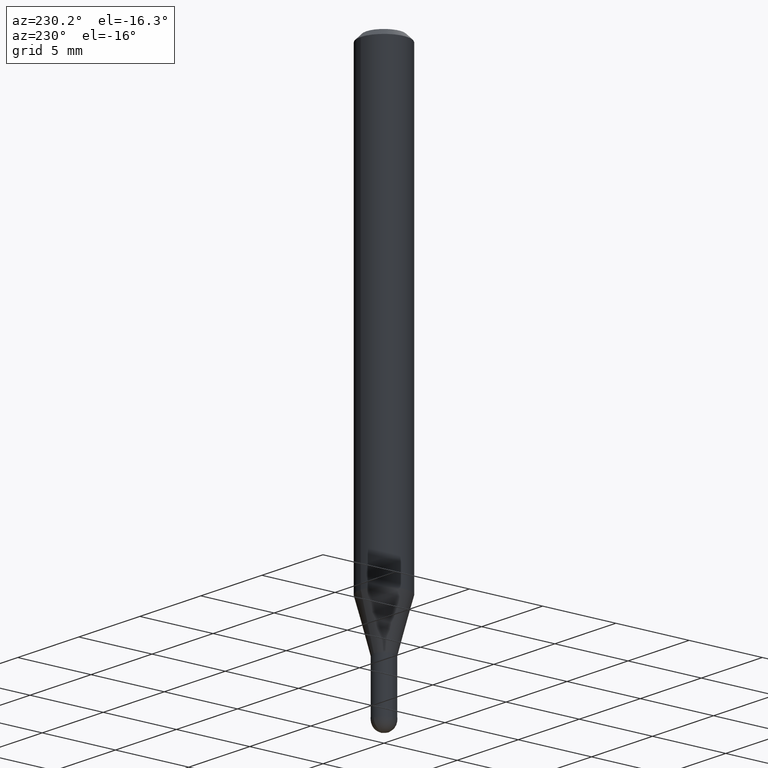
[diagram: clean part render]
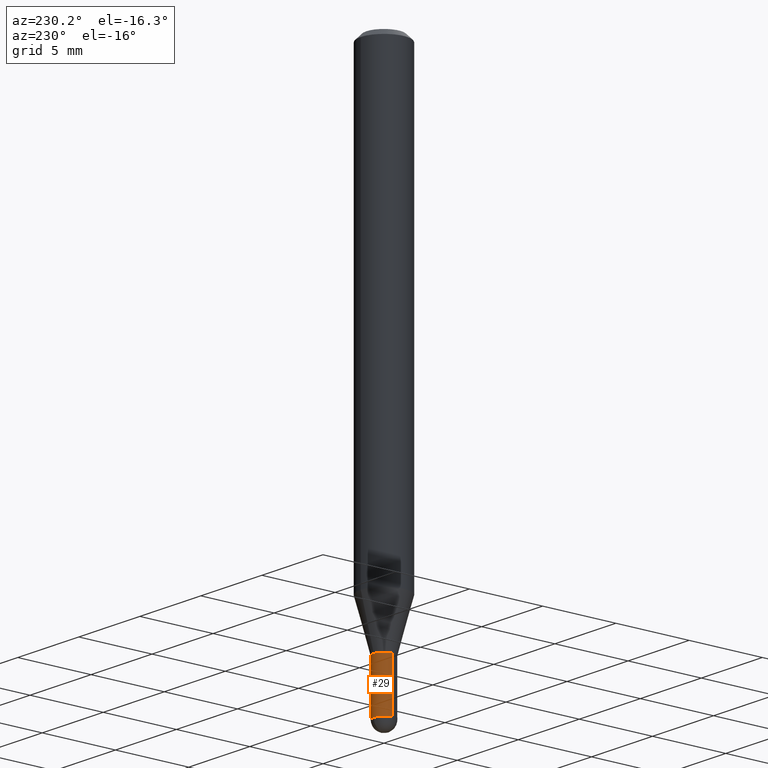
[diagram: same view with one face highlighted and labeled with its STEP entity id]
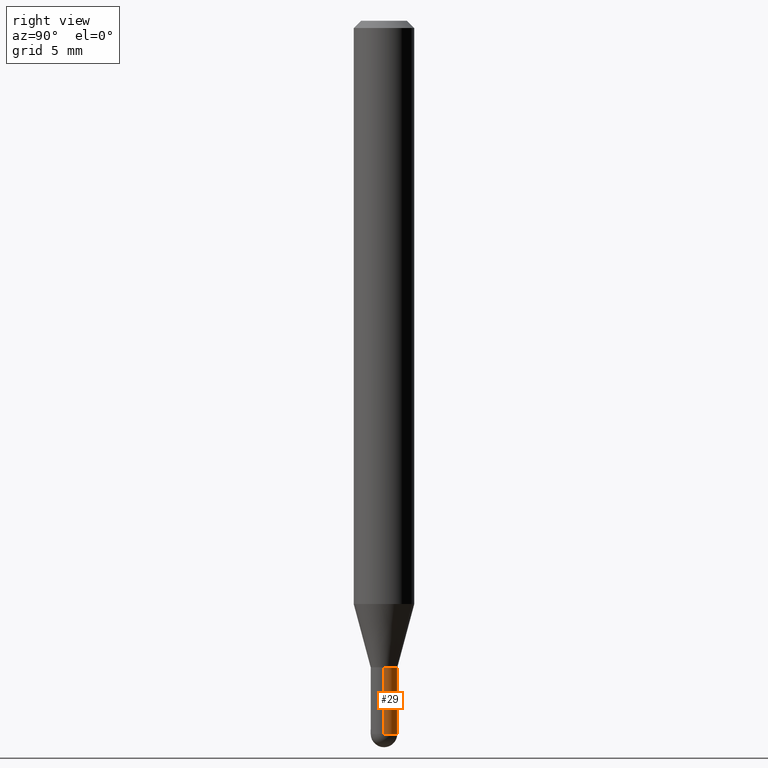
[diagram: same view with one face highlighted and labeled with its STEP entity id]
A machine part, auxiliary view. The second image highlights one B-rep face of the part: STEP entity #29.
A second angle (right view) of the same face is appended — the face is thin or edge-on in the first view.
In plain terms, the highlighted cylindrical surface (edge-blend (fillet) strip) has radius 0.6985 mm, axis along (-0, 0, 1).
Its self-contained STEP definition (entity closure, byte-faithful):
#24 = CARTESIAN_POINT ( 'NONE',  ( -0.02750000000000000708, 1.953992523340276014E-16, -1.352707149820099356E-30 ) ) ;
#27 = CIRCLE ( 'NONE', #303, 0.02750000000000000708 ) ;
#29 = ADVANCED_FACE ( 'NONE', ( #403 ), #373, .T. ) ;
#38 = DIRECTION ( 'NONE',  ( 1.000000000000000000, -6.982962677686277755E-15, 0.000000000000000000 ) ) ;
#44 = VECTOR ( 'NONE', #287, 39.37007874015748143 ) ;
#58 = EDGE_CURVE ( 'NONE', #111, #398, #27, .T. ) ;
#84 = VERTEX_POINT ( 'NONE', #229 ) ;
#96 = DIRECTION ( 'NONE',  ( 1.000000000000000000, -6.982962677686277755E-15, 0.000000000000000000 ) ) ;
#110 = CARTESIAN_POINT ( 'NONE',  ( 0.02750000000000000708, -1.920314736363723691E-16, 1.340948613343882588E-30 ) ) ;
#111 = VERTEX_POINT ( 'NONE', #500 ) ;
#120 = CARTESIAN_POINT ( 'NONE',  ( 3.600952817107613706E-29, -5.141206271446532325E-15, -1.472500000000000142 ) ) ;
#121 = ORIENTED_EDGE ( 'NONE', *, *, #58, .T. ) ;
#124 = AXIS2_PLACEMENT_3D ( 'NONE', #176, #334, #292 ) ;
#142 = VECTOR ( 'NONE', #232, 39.37007874015748143 ) ;
#147 = CARTESIAN_POINT ( 'NONE',  ( 3.264700856257157760E-29, -4.661127587355599122E-15, -1.335000000000000187 ) ) ;
#149 = ORIENTED_EDGE ( 'NONE', *, *, #152, .T. ) ;
#152 = EDGE_CURVE ( 'NONE', #84, #319, #497, .T. ) ;
#158 = ORIENTED_EDGE ( 'NONE', *, *, #293, .F. ) ;
#173 = ORIENTED_EDGE ( 'NONE', *, *, #509, .F. ) ;
#176 = CARTESIAN_POINT ( 'NONE',  ( 0.000000000000000000, 0.000000000000000000, 0.000000000000000000 ) ) ;
#196 = CARTESIAN_POINT ( 'NONE',  ( 0.02750000000000000014, -4.853159060991972403E-15, -1.335000000000000187 ) ) ;
#201 = CARTESIAN_POINT ( 'NONE',  ( 1.953992523340638644E-16, 0.02749999999999491046, -1.472500000000000142 ) ) ;
#212 = AXIS2_PLACEMENT_3D ( 'NONE', #120, #280, #38 ) ;
#227 = CIRCLE ( 'NONE', #212, 0.02750000000000000708 ) ;
#229 = CARTESIAN_POINT ( 'NONE',  ( -0.02750000000000000708, -4.705767677067038393E-15, -1.472500000000000142 ) ) ;
#232 = DIRECTION ( 'NONE',  ( -2.445468806185136877E-29, 3.491481338843145188E-15, 1.000000000000000000 ) ) ;
#236 = EDGE_CURVE ( 'NONE', #398, #84, #227, .T. ) ;
#239 = LINE ( 'NONE', #110, #44 ) ;
#247 = VERTEX_POINT ( 'NONE', #196 ) ;
#270 = DIRECTION ( 'NONE',  ( 1.000000000000000000, -6.982962677686279332E-15, 0.000000000000000000 ) ) ;
#280 = DIRECTION ( 'NONE',  ( -2.445468806185136597E-29, 3.491481338843145583E-15, 1.000000000000000000 ) ) ;
#287 = DIRECTION ( 'NONE',  ( -2.445468806185136877E-29, 3.491481338843145188E-15, 1.000000000000000000 ) ) ;
#292 = DIRECTION ( 'NONE',  ( 1.000000000000000000, -6.982962677686265922E-15, 4.876176775795935232E-29 ) ) ;
#293 = EDGE_CURVE ( 'NONE', #111, #247, #239, .T. ) ;
#303 = AXIS2_PLACEMENT_3D ( 'NONE', #449, #401, #96 ) ;
#319 = VERTEX_POINT ( 'NONE', #435 ) ;
#334 = DIRECTION ( 'NONE',  ( -2.445468806185136597E-29, 3.491481338843145583E-15, 1.000000000000000000 ) ) ;
#342 = ORIENTED_EDGE ( 'NONE', *, *, #236, .T. ) ;
#373 = CYLINDRICAL_SURFACE ( 'NONE', #124, 0.02750000000000000708 ) ;
#388 = AXIS2_PLACEMENT_3D ( 'NONE', #147, #458, #270 ) ;
#398 = VERTEX_POINT ( 'NONE', #201 ) ;
#401 = DIRECTION ( 'NONE',  ( -2.445468806185136597E-29, 3.491481338843145583E-15, 1.000000000000000000 ) ) ;
#403 = FACE_OUTER_BOUND ( 'NONE', #439, .T. ) ;
#435 = CARTESIAN_POINT ( 'NONE',  ( -0.02750000000000000014, -4.705767677067038393E-15, -1.335000000000000187 ) ) ;
#439 = EDGE_LOOP ( 'NONE', ( #342, #149, #173, #158, #121 ) ) ;
#449 = CARTESIAN_POINT ( 'NONE',  ( 3.600952817107613706E-29, -5.141206271446532325E-15, -1.472500000000000142 ) ) ;
#458 = DIRECTION ( 'NONE',  ( -2.445468806185136597E-29, 3.491481338843145583E-15, 1.000000000000000000 ) ) ;
#484 = CIRCLE ( 'NONE', #388, 0.02750000000000000014 ) ;
#497 = LINE ( 'NONE', #24, #142 ) ;
#500 = CARTESIAN_POINT ( 'NONE',  ( 0.02750000000000000708, -5.093198403037438216E-15, -1.472500000000000142 ) ) ;
#509 = EDGE_CURVE ( 'NONE', #247, #319, #484, .T. ) ;